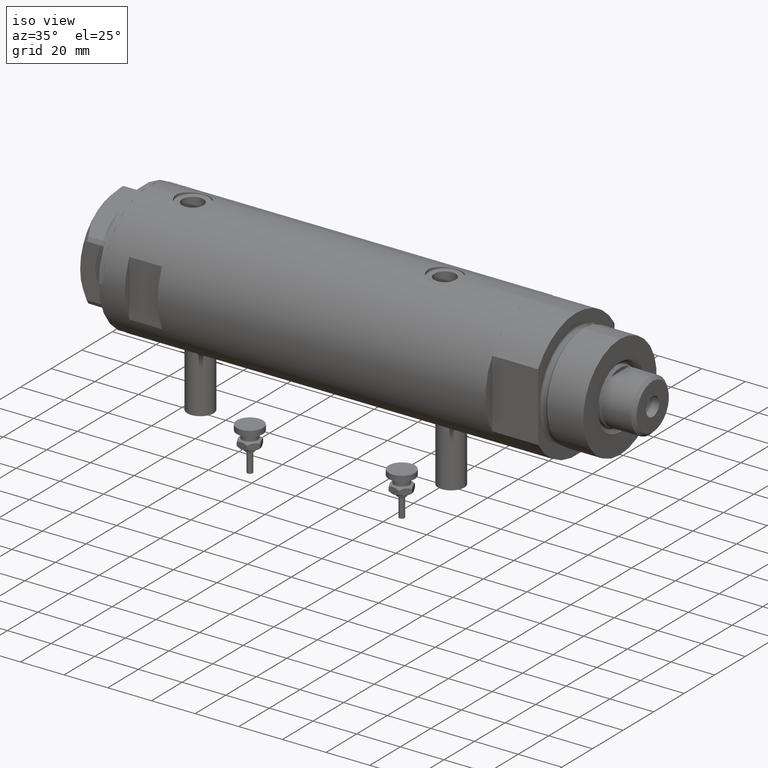
[diagram: clean part render]
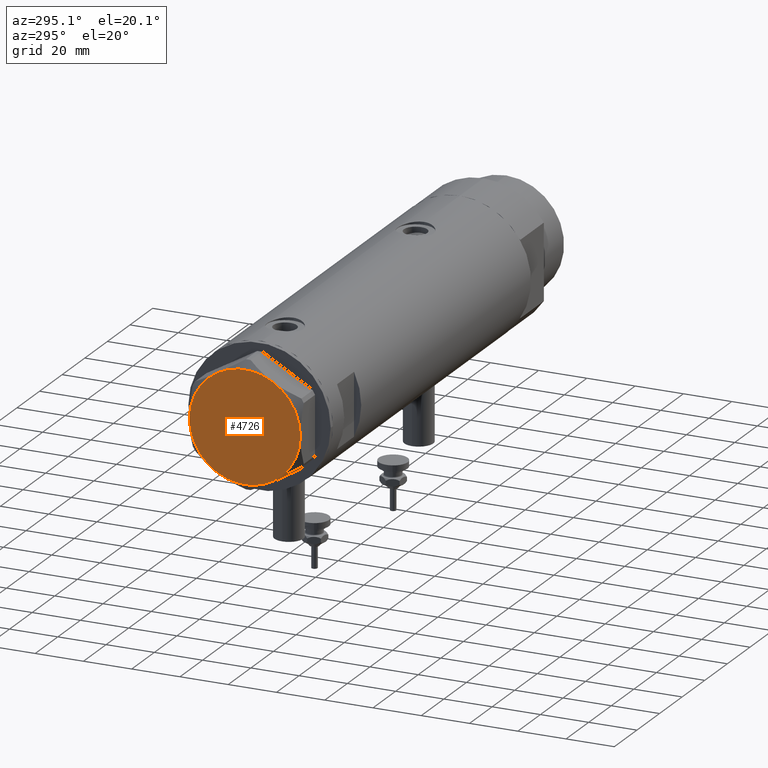
[diagram: tour spotlight — one face highlighted and labeled with its STEP entity id]
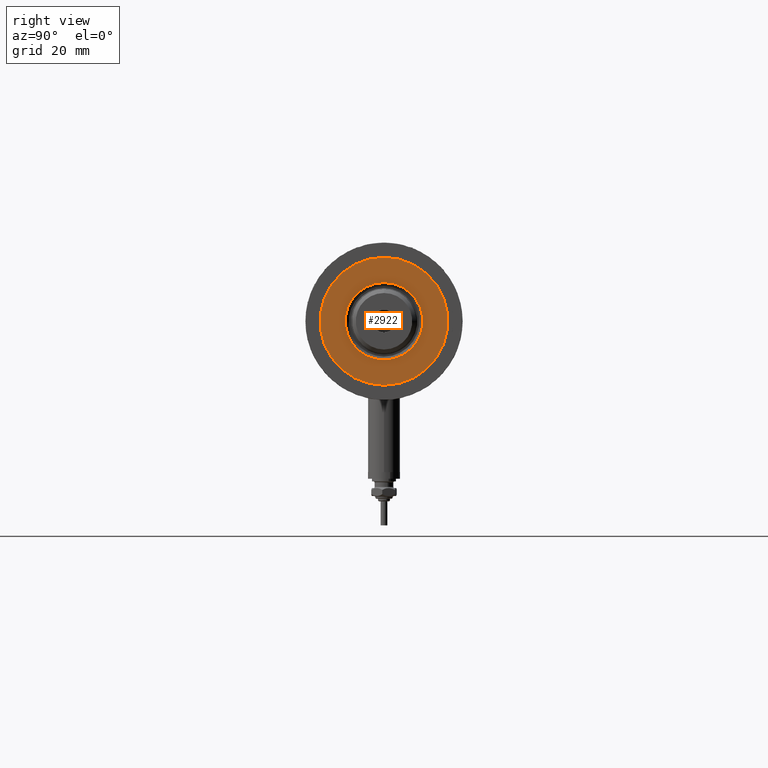
[diagram: tour spotlight — one face highlighted and labeled with its STEP entity id]
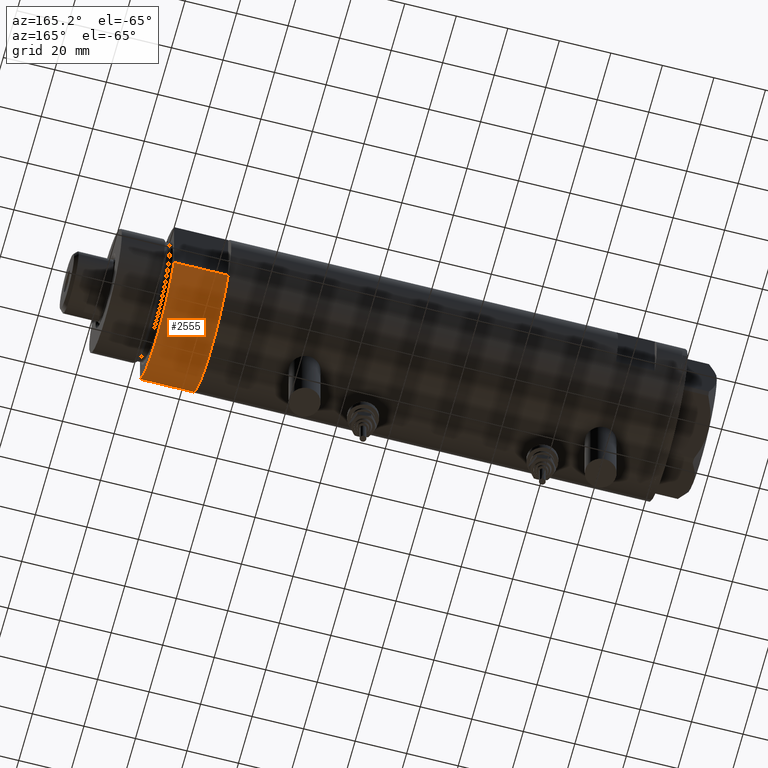
[diagram: tour spotlight — one face highlighted and labeled with its STEP entity id]
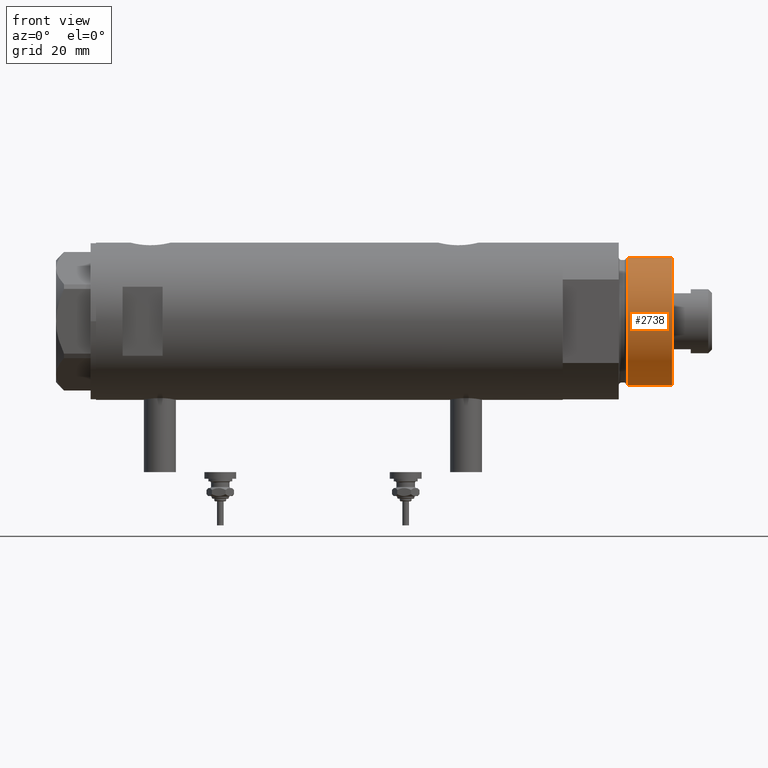
[diagram: tour spotlight — one face highlighted and labeled with its STEP entity id]
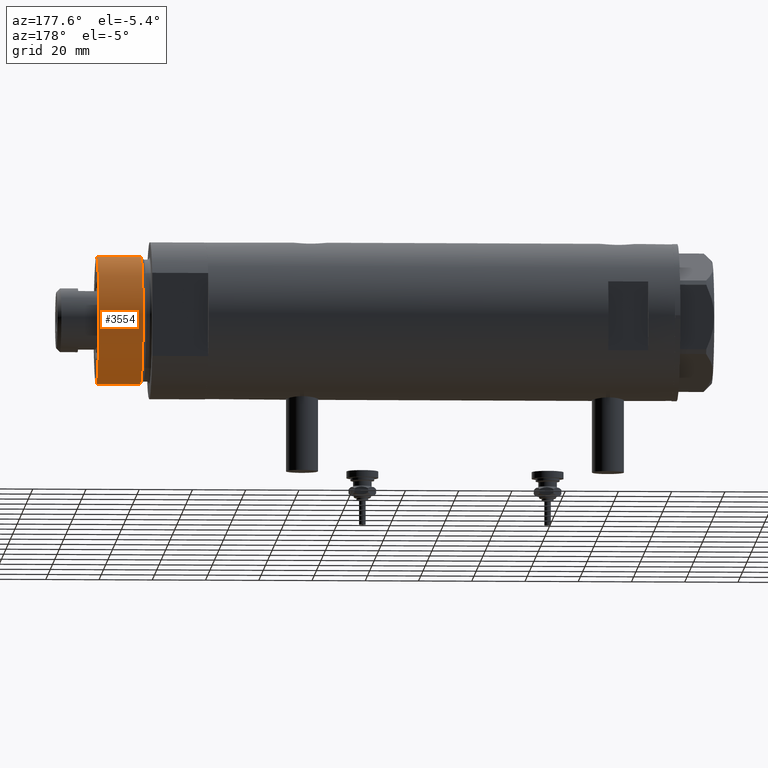
[diagram: tour spotlight — one face highlighted and labeled with its STEP entity id]
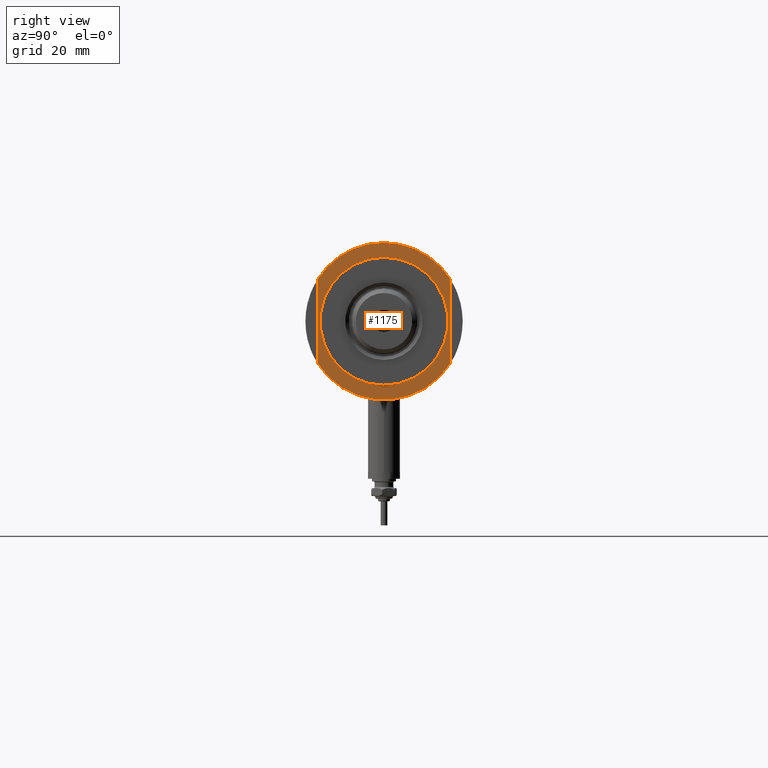
[diagram: tour spotlight — one face highlighted and labeled with its STEP entity id]
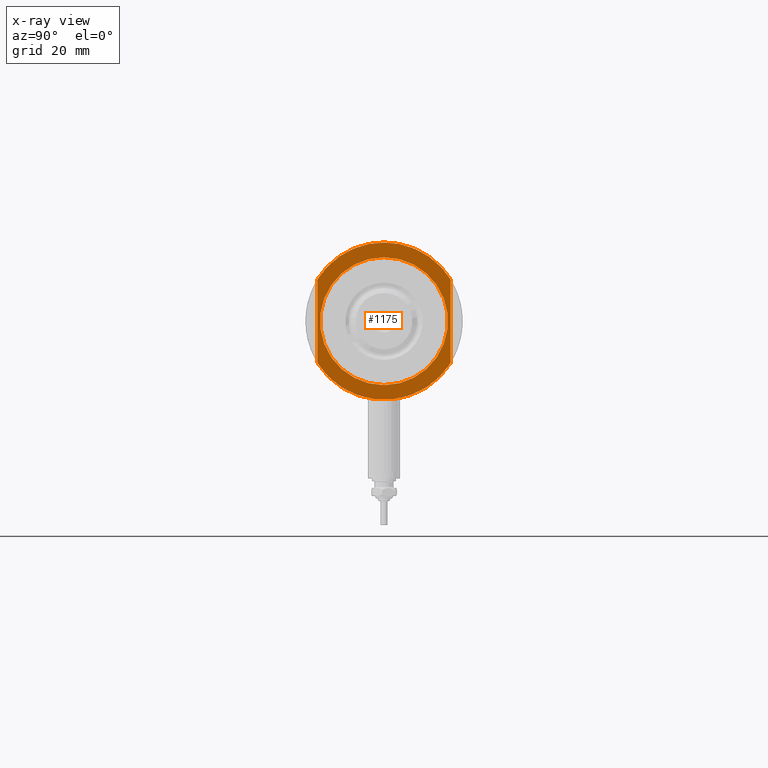
[diagram: x-ray of the same camera — body ghosted, this tour face saturated]
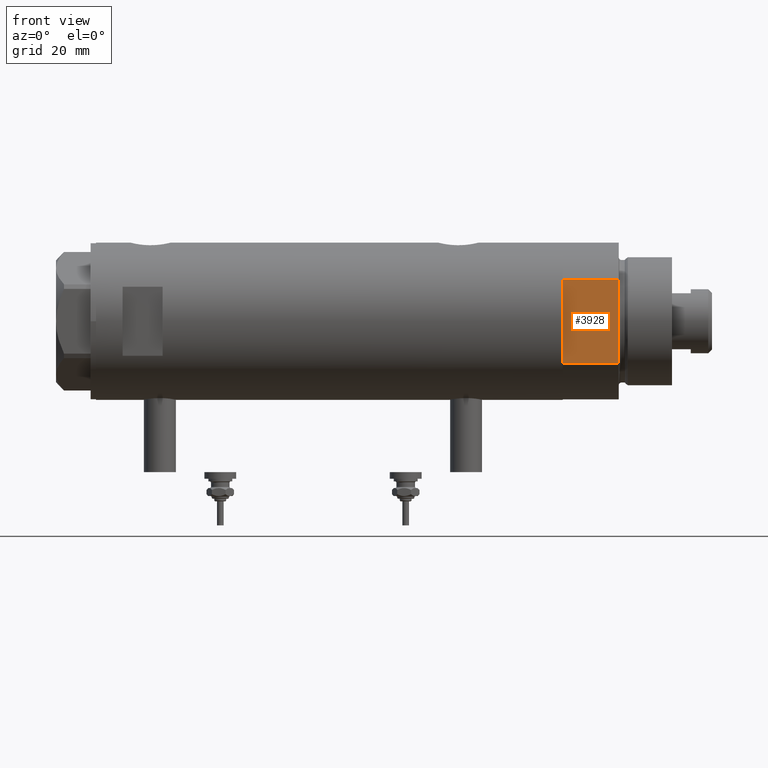
[diagram: tour spotlight — one face highlighted and labeled with its STEP entity id]
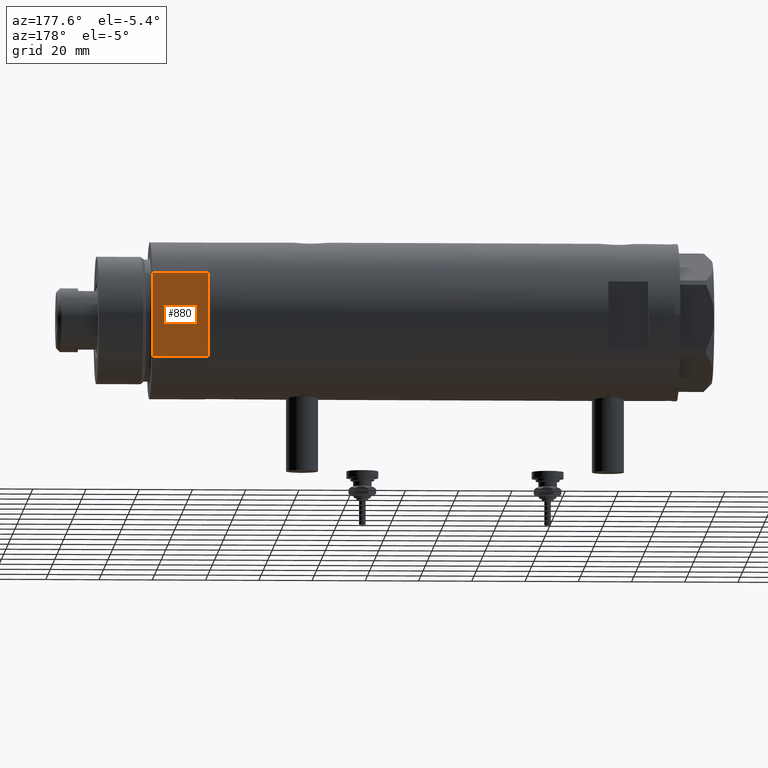
[diagram: tour spotlight — one face highlighted and labeled with its STEP entity id]
A machine part: a face-by-face anatomy tour. The part has 212 B-rep faces; the first image is the clean iso view, then the 8 largest visible faces are spotlighted one at a time (largest first), each with its STEP entity span.

Face 1 — auxiliary view, entity #4726. In plain terms, the highlighted planar face has unit normal (-1, -0, 0).
Definition (entity closure, byte-faithful):
#5 = VERTEX_POINT ( 'NONE', #5458 ) ;
#76 = CARTESIAN_POINT ( 'NONE',  ( 0.000000000000000000, 0.000000000000000000, 13.00000000000000000 ) ) ;
#137 = CARTESIAN_POINT ( 'NONE',  ( 0.000000000000000000, 0.000000000000000000, 13.00000000000000000 ) ) ;
#416 = EDGE_CURVE ( 'NONE', #603, #4367, #781, .T. ) ;
#467 = DIRECTION ( 'NONE',  ( 1.000000000000000000, 0.000000000000000000, 0.000000000000000000 ) ) ;
#497 = PLANE ( 'NONE',  #2364 ) ;
#603 = VERTEX_POINT ( 'NONE', #3994 ) ;
#773 = CARTESIAN_POINT ( 'NONE',  ( 0.000000000000000000, 0.000000000000000000, 13.00000000000000000 ) ) ;
#781 = CIRCLE ( 'NONE', #4120, 23.00000000000004619 ) ;
#957 = DIRECTION ( 'NONE',  ( 1.000000000000000000, 0.000000000000000000, -0.000000000000000000 ) ) ;
#966 = CARTESIAN_POINT ( 'NONE',  ( 0.000000000000000000, 0.000000000000000000, 13.00000000000000000 ) ) ;
#967 = EDGE_CURVE ( 'NONE', #4367, #2924, #1179, .T. ) ;
#980 = ORIENTED_EDGE ( 'NONE', *, *, #3523, .T. ) ;
#992 = VERTEX_POINT ( 'NONE', #3843 ) ;
#1016 = CIRCLE ( 'NONE', #1507, 23.00000000000004619 ) ;
#1033 = CIRCLE ( 'NONE', #4357, 23.00000000000004619 ) ;
#1052 = DIRECTION ( 'NONE',  ( 0.000000000000000000, 0.000000000000000000, 1.000000000000000000 ) ) ;
#1179 = CIRCLE ( 'NONE', #3260, 23.00000000000004619 ) ;
#1198 = ORIENTED_EDGE ( 'NONE', *, *, #967, .T. ) ;
#1426 = DIRECTION ( 'NONE',  ( 0.000000000000000000, 0.000000000000000000, 1.000000000000000000 ) ) ;
#1433 = CARTESIAN_POINT ( 'NONE',  ( 0.000000000000000000, 0.000000000000000000, 13.00000000000000000 ) ) ;
#1496 = DIRECTION ( 'NONE',  ( 0.000000000000000000, 0.000000000000000000, 1.000000000000000000 ) ) ;
#1507 = AXIS2_PLACEMENT_3D ( 'NONE', #76, #1052, #2860 ) ;
#1686 = ORIENTED_EDGE ( 'NONE', *, *, #5323, .T. ) ;
#1861 = FACE_OUTER_BOUND ( 'NONE', #1876, .T. ) ;
#1876 = EDGE_LOOP ( 'NONE', ( #4136, #1198, #5587, #980, #5157, #1686 ) ) ;
#2364 = AXIS2_PLACEMENT_3D ( 'NONE', #1433, #5050, #957 ) ;
#2614 = CIRCLE ( 'NONE', #3011, 23.00000000000004619 ) ;
#2679 = EDGE_CURVE ( 'NONE', #5, #992, #2614, .T. ) ;
#2722 = CARTESIAN_POINT ( 'NONE',  ( 0.000000000000000000, 0.000000000000000000, 13.00000000000000000 ) ) ;
#2755 = DIRECTION ( 'NONE',  ( 1.000000000000000000, 0.000000000000000000, 0.000000000000000000 ) ) ;
#2783 = DIRECTION ( 'NONE',  ( 0.000000000000000000, 0.000000000000000000, 1.000000000000000000 ) ) ;
#2860 = DIRECTION ( 'NONE',  ( 1.000000000000000000, 0.000000000000000000, 0.000000000000000000 ) ) ;
#2924 = VERTEX_POINT ( 'NONE', #3053 ) ;
#3011 = AXIS2_PLACEMENT_3D ( 'NONE', #773, #3553, #5427 ) ;
#3053 = CARTESIAN_POINT ( 'NONE',  ( 11.49999999999990408, 19.91858428704219364, 13.00000000000000000 ) ) ;
#3260 = AXIS2_PLACEMENT_3D ( 'NONE', #5515, #1426, #3707 ) ;
#3311 = DIRECTION ( 'NONE',  ( 1.000000000000000000, 0.000000000000000000, 0.000000000000000000 ) ) ;
#3391 = DIRECTION ( 'NONE',  ( 0.000000000000000000, 0.000000000000000000, 1.000000000000000000 ) ) ;
#3523 = EDGE_CURVE ( 'NONE', #4393, #5, #1016, .T. ) ;
#3553 = DIRECTION ( 'NONE',  ( 0.000000000000000000, 0.000000000000000000, 1.000000000000000000 ) ) ;
#3707 = DIRECTION ( 'NONE',  ( 1.000000000000000000, 0.000000000000000000, 0.000000000000000000 ) ) ;
#3843 = CARTESIAN_POINT ( 'NONE',  ( -11.49999999999990585, -19.91858428704219364, 13.00000000000000000 ) ) ;
#3994 = CARTESIAN_POINT ( 'NONE',  ( 11.50000000000018296, -19.91858428704203732, 13.00000000000000000 ) ) ;
#4120 = AXIS2_PLACEMENT_3D ( 'NONE', #2722, #2783, #2755 ) ;
#4136 = ORIENTED_EDGE ( 'NONE', *, *, #416, .T. ) ;
#4357 = AXIS2_PLACEMENT_3D ( 'NONE', #137, #3391, #3311 ) ;
#4367 = VERTEX_POINT ( 'NONE', #4550 ) ;
#4393 = VERTEX_POINT ( 'NONE', #4677 ) ;
#4416 = EDGE_CURVE ( 'NONE', #2924, #4393, #4924, .T. ) ;
#4550 = CARTESIAN_POINT ( 'NONE',  ( 22.99999999999995026, 2.373657066004705010E-13, 13.00000000000000000 ) ) ;
#4677 = CARTESIAN_POINT ( 'NONE',  ( -11.50000000000004441, 19.91858428704211548, 13.00000000000000000 ) ) ;
#4726 = ADVANCED_FACE ( 'NONE', ( #1861 ), #497, .T. ) ;
#4924 = CIRCLE ( 'NONE', #5691, 23.00000000000004619 ) ;
#5050 = DIRECTION ( 'NONE',  ( 0.000000000000000000, 0.000000000000000000, 1.000000000000000000 ) ) ;
#5157 = ORIENTED_EDGE ( 'NONE', *, *, #2679, .T. ) ;
#5323 = EDGE_CURVE ( 'NONE', #992, #603, #1033, .T. ) ;
#5427 = DIRECTION ( 'NONE',  ( 1.000000000000000000, 0.000000000000000000, 0.000000000000000000 ) ) ;
#5458 = CARTESIAN_POINT ( 'NONE',  ( -23.00000000000004619, -8.112498833180673323E-14, 13.00000000000000000 ) ) ;
#5515 = CARTESIAN_POINT ( 'NONE',  ( 0.000000000000000000, 0.000000000000000000, 13.00000000000000000 ) ) ;
#5587 = ORIENTED_EDGE ( 'NONE', *, *, #4416, .T. ) ;
#5691 = AXIS2_PLACEMENT_3D ( 'NONE', #966, #1496, #467 ) ;

Face 2 — right view, entity #2922. In plain terms, the highlighted planar face has unit normal (1, 0, -0).
Definition (entity closure, byte-faithful):
#56 = CARTESIAN_POINT ( 'NONE',  ( 14.54999999999997939, 0.000000000000000000, 41.00000000000000000 ) ) ;
#630 = CIRCLE ( 'NONE', #3970, 24.00000000000000355 ) ;
#1017 = CARTESIAN_POINT ( 'NONE',  ( 0.000000000000000000, 0.000000000000000000, 41.00000000000000000 ) ) ;
#1201 = AXIS2_PLACEMENT_3D ( 'NONE', #5750, #1665, #5302 ) ;
#1274 = ORIENTED_EDGE ( 'NONE', *, *, #3200, .T. ) ;
#1401 = CIRCLE ( 'NONE', #1201, 24.00000000000000355 ) ;
#1450 = EDGE_CURVE ( 'NONE', #4061, #4706, #2897, .T. ) ;
#1613 = CARTESIAN_POINT ( 'NONE',  ( -14.54999999999997939, 1.781861092759396721E-15, 41.00000000000000000 ) ) ;
#1665 = DIRECTION ( 'NONE',  ( 0.000000000000000000, 0.000000000000000000, 1.000000000000000000 ) ) ;
#1689 = DIRECTION ( 'NONE',  ( 0.000000000000000000, 0.000000000000000000, 1.000000000000000000 ) ) ;
#1707 = EDGE_LOOP ( 'NONE', ( #5253, #2187 ) ) ;
#1736 = PLANE ( 'NONE',  #1965 ) ;
#1965 = AXIS2_PLACEMENT_3D ( 'NONE', #3932, #1689, #3546 ) ;
#2187 = ORIENTED_EDGE ( 'NONE', *, *, #1450, .T. ) ;
#2287 = DIRECTION ( 'NONE',  ( 0.000000000000000000, 0.000000000000000000, 1.000000000000000000 ) ) ;
#2369 = ORIENTED_EDGE ( 'NONE', *, *, #5377, .T. ) ;
#2453 = AXIS2_PLACEMENT_3D ( 'NONE', #1017, #2770, #4111 ) ;
#2731 = CIRCLE ( 'NONE', #2453, 14.54999999999997939 ) ;
#2737 = VERTEX_POINT ( 'NONE', #2779 ) ;
#2770 = DIRECTION ( 'NONE',  ( -0.000000000000000000, -0.000000000000000000, -1.000000000000000000 ) ) ;
#2779 = CARTESIAN_POINT ( 'NONE',  ( -24.00000000000000355, 0.000000000000000000, 41.00000000000000000 ) ) ;
#2780 = EDGE_LOOP ( 'NONE', ( #2369, #1274 ) ) ;
#2897 = CIRCLE ( 'NONE', #4893, 14.54999999999997939 ) ;
#2922 = ADVANCED_FACE ( 'NONE', ( #5829, #5771 ), #1736, .T. ) ;
#3200 = EDGE_CURVE ( 'NONE', #5695, #2737, #1401, .T. ) ;
#3546 = DIRECTION ( 'NONE',  ( 1.000000000000000000, 0.000000000000000000, -0.000000000000000000 ) ) ;
#3549 = CARTESIAN_POINT ( 'NONE',  ( 0.000000000000000000, 0.000000000000000000, 41.00000000000000000 ) ) ;
#3932 = CARTESIAN_POINT ( 'NONE',  ( 0.000000000000000000, 0.000000000000000000, 41.00000000000000000 ) ) ;
#3970 = AXIS2_PLACEMENT_3D ( 'NONE', #4043, #2287, #5007 ) ;
#4043 = CARTESIAN_POINT ( 'NONE',  ( 0.000000000000000000, 0.000000000000000000, 41.00000000000000000 ) ) ;
#4061 = VERTEX_POINT ( 'NONE', #1613 ) ;
#4111 = DIRECTION ( 'NONE',  ( 1.000000000000000000, 0.000000000000000000, 0.000000000000000000 ) ) ;
#4229 = CARTESIAN_POINT ( 'NONE',  ( 24.00000000000000355, 2.939152317953648289E-15, 41.00000000000000000 ) ) ;
#4706 = VERTEX_POINT ( 'NONE', #56 ) ;
#4893 = AXIS2_PLACEMENT_3D ( 'NONE', #3549, #5386, #5477 ) ;
#5007 = DIRECTION ( 'NONE',  ( 1.000000000000000000, 0.000000000000000000, 0.000000000000000000 ) ) ;
#5241 = EDGE_CURVE ( 'NONE', #4706, #4061, #2731, .T. ) ;
#5253 = ORIENTED_EDGE ( 'NONE', *, *, #5241, .T. ) ;
#5302 = DIRECTION ( 'NONE',  ( 1.000000000000000000, 0.000000000000000000, 0.000000000000000000 ) ) ;
#5377 = EDGE_CURVE ( 'NONE', #2737, #5695, #630, .T. ) ;
#5386 = DIRECTION ( 'NONE',  ( -0.000000000000000000, -0.000000000000000000, -1.000000000000000000 ) ) ;
#5477 = DIRECTION ( 'NONE',  ( 1.000000000000000000, 0.000000000000000000, 0.000000000000000000 ) ) ;
#5695 = VERTEX_POINT ( 'NONE', #4229 ) ;
#5750 = CARTESIAN_POINT ( 'NONE',  ( 0.000000000000000000, 0.000000000000000000, 41.00000000000000000 ) ) ;
#5771 = FACE_OUTER_BOUND ( 'NONE', #2780, .T. ) ;
#5829 = FACE_BOUND ( 'NONE', #1707, .T. ) ;

Face 3 — auxiliary view, entity #2555. In plain terms, the highlighted cylindrical surface (partial cylindrical patch) has radius 29.5 mm, axis along (-1, -0, 0).
Definition (entity closure, byte-faithful):
#128 = CYLINDRICAL_SURFACE ( 'NONE', #1859, 29.50000000000000355 ) ;
#216 = CARTESIAN_POINT ( 'NONE',  ( 15.66045976336583401, -25.00000000000000000, 0.000000000000000000 ) ) ;
#233 = CIRCLE ( 'NONE', #3496, 29.50000000000000355 ) ;
#475 = LINE ( 'NONE', #5465, #1424 ) ;
#568 = DIRECTION ( 'NONE',  ( 0.000000000000000000, 0.000000000000000000, 1.000000000000000000 ) ) ;
#1046 = FACE_OUTER_BOUND ( 'NONE', #1556, .T. ) ;
#1394 = AXIS2_PLACEMENT_3D ( 'NONE', #2243, #568, #3205 ) ;
#1415 = CARTESIAN_POINT ( 'NONE',  ( 0.000000000000000000, 0.000000000000000000, 21.00000000000000000 ) ) ;
#1424 = VECTOR ( 'NONE', #3609, 1000.000000000000000 ) ;
#1556 = EDGE_LOOP ( 'NONE', ( #1632, #5480, #4825, #3570 ) ) ;
#1632 = ORIENTED_EDGE ( 'NONE', *, *, #5059, .F. ) ;
#1859 = AXIS2_PLACEMENT_3D ( 'NONE', #2393, #3269, #4197 ) ;
#1896 = CARTESIAN_POINT ( 'NONE',  ( 15.66045976336583045, 24.99999999999999645, 20.99999999999999645 ) ) ;
#1920 = LINE ( 'NONE', #3735, #2266 ) ;
#2243 = CARTESIAN_POINT ( 'NONE',  ( 0.000000000000000000, 0.000000000000000000, 0.000000000000000000 ) ) ;
#2266 = VECTOR ( 'NONE', #2268, 1000.000000000000000 ) ;
#2268 = DIRECTION ( 'NONE',  ( -0.000000000000000000, -0.000000000000000000, 1.000000000000000000 ) ) ;
#2393 = CARTESIAN_POINT ( 'NONE',  ( 0.000000000000000000, 0.000000000000000000, 21.00000000000000000 ) ) ;
#2555 = ADVANCED_FACE ( 'NONE', ( #1046 ), #128, .T. ) ;
#2569 = CARTESIAN_POINT ( 'NONE',  ( 15.66045976336583045, -25.00000000000000000, 21.00000000000000355 ) ) ;
#2728 = EDGE_CURVE ( 'NONE', #4480, #3626, #3949, .T. ) ;
#3205 = DIRECTION ( 'NONE',  ( 1.000000000000000000, 0.000000000000000000, 0.000000000000000000 ) ) ;
#3269 = DIRECTION ( 'NONE',  ( -0.000000000000000000, -0.000000000000000000, -1.000000000000000000 ) ) ;
#3325 = VERTEX_POINT ( 'NONE', #2569 ) ;
#3410 = VERTEX_POINT ( 'NONE', #1896 ) ;
#3496 = AXIS2_PLACEMENT_3D ( 'NONE', #1415, #5504, #5308 ) ;
#3570 = ORIENTED_EDGE ( 'NONE', *, *, #5645, .T. ) ;
#3609 = DIRECTION ( 'NONE',  ( -0.000000000000000000, -0.000000000000000000, 1.000000000000000000 ) ) ;
#3626 = VERTEX_POINT ( 'NONE', #5304 ) ;
#3735 = CARTESIAN_POINT ( 'NONE',  ( 15.66045976336583401, 25.00000000000000000, 0.000000000000000000 ) ) ;
#3949 = CIRCLE ( 'NONE', #1394, 29.50000000000000355 ) ;
#4197 = DIRECTION ( 'NONE',  ( -1.000000000000000000, 0.000000000000000000, 0.000000000000000000 ) ) ;
#4480 = VERTEX_POINT ( 'NONE', #216 ) ;
#4825 = ORIENTED_EDGE ( 'NONE', *, *, #2728, .T. ) ;
#5059 = EDGE_CURVE ( 'NONE', #3325, #3410, #233, .T. ) ;
#5304 = CARTESIAN_POINT ( 'NONE',  ( 15.66045976336582690, 25.00000000000000000, 0.000000000000000000 ) ) ;
#5308 = DIRECTION ( 'NONE',  ( 1.000000000000000000, 0.000000000000000000, 0.000000000000000000 ) ) ;
#5404 = EDGE_CURVE ( 'NONE', #4480, #3325, #475, .T. ) ;
#5465 = CARTESIAN_POINT ( 'NONE',  ( 15.66045976336583401, -25.00000000000000000, 0.000000000000000000 ) ) ;
#5480 = ORIENTED_EDGE ( 'NONE', *, *, #5404, .F. ) ;
#5504 = DIRECTION ( 'NONE',  ( 0.000000000000000000, 0.000000000000000000, 1.000000000000000000 ) ) ;
#5645 = EDGE_CURVE ( 'NONE', #3626, #3410, #1920, .T. ) ;

Face 4 — front view, entity #2738. In plain terms, the highlighted cylindrical surface (partial cylindrical patch) has radius 24 mm, axis along (-1, -0, 0).
Definition (entity closure, byte-faithful):
#23 = DIRECTION ( 'NONE',  ( -0.000000000000000000, -0.000000000000000000, -1.000000000000000000 ) ) ;
#37 = VECTOR ( 'NONE', #5076, 1000.000000000000000 ) ;
#57 = VERTEX_POINT ( 'NONE', #3079 ) ;
#86 = CARTESIAN_POINT ( 'NONE',  ( 0.000000000000000000, 0.000000000000000000, 41.00000000000000000 ) ) ;
#91 = DIRECTION ( 'NONE',  ( 1.000000000000000000, 0.000000000000000000, 0.000000000000000000 ) ) ;
#611 = ORIENTED_EDGE ( 'NONE', *, *, #5377, .F. ) ;
#630 = CIRCLE ( 'NONE', #3970, 24.00000000000000355 ) ;
#1387 = CARTESIAN_POINT ( 'NONE',  ( 24.00000000000000355, 2.939152317953648289E-15, 41.00000000000000000 ) ) ;
#1495 = VECTOR ( 'NONE', #23, 1000.000000000000000 ) ;
#1515 = ORIENTED_EDGE ( 'NONE', *, *, #2990, .F. ) ;
#1830 = CYLINDRICAL_SURFACE ( 'NONE', #5396, 24.00000000000000355 ) ;
#1919 = LINE ( 'NONE', #2800, #1495 ) ;
#2072 = ORIENTED_EDGE ( 'NONE', *, *, #3016, .T. ) ;
#2157 = AXIS2_PLACEMENT_3D ( 'NONE', #3209, #3744, #91 ) ;
#2287 = DIRECTION ( 'NONE',  ( 0.000000000000000000, 0.000000000000000000, 1.000000000000000000 ) ) ;
#2737 = VERTEX_POINT ( 'NONE', #2779 ) ;
#2738 = ADVANCED_FACE ( 'NONE', ( #4834 ), #1830, .T. ) ;
#2771 = LINE ( 'NONE', #1387, #37 ) ;
#2779 = CARTESIAN_POINT ( 'NONE',  ( -24.00000000000000355, 0.000000000000000000, 41.00000000000000000 ) ) ;
#2800 = CARTESIAN_POINT ( 'NONE',  ( -24.00000000000000355, 0.000000000000000000, 41.00000000000000000 ) ) ;
#2990 = EDGE_CURVE ( 'NONE', #5695, #3781, #2771, .T. ) ;
#3016 = EDGE_CURVE ( 'NONE', #2737, #57, #1919, .T. ) ;
#3079 = CARTESIAN_POINT ( 'NONE',  ( -24.00000000000000355, 0.000000000000000000, 24.37384048104054557 ) ) ;
#3209 = CARTESIAN_POINT ( 'NONE',  ( 0.000000000000000000, 0.000000000000000000, 24.37384048104054557 ) ) ;
#3728 = EDGE_LOOP ( 'NONE', ( #1515, #611, #2072, #5615 ) ) ;
#3744 = DIRECTION ( 'NONE',  ( -0.000000000000000000, -0.000000000000000000, 1.000000000000000000 ) ) ;
#3781 = VERTEX_POINT ( 'NONE', #5455 ) ;
#3970 = AXIS2_PLACEMENT_3D ( 'NONE', #4043, #2287, #5007 ) ;
#4043 = CARTESIAN_POINT ( 'NONE',  ( 0.000000000000000000, 0.000000000000000000, 41.00000000000000000 ) ) ;
#4124 = DIRECTION ( 'NONE',  ( -1.000000000000000000, 0.000000000000000000, 0.000000000000000000 ) ) ;
#4229 = CARTESIAN_POINT ( 'NONE',  ( 24.00000000000000355, 2.939152317953648289E-15, 41.00000000000000000 ) ) ;
#4372 = EDGE_CURVE ( 'NONE', #57, #3781, #4727, .T. ) ;
#4575 = DIRECTION ( 'NONE',  ( -0.000000000000000000, -0.000000000000000000, -1.000000000000000000 ) ) ;
#4727 = CIRCLE ( 'NONE', #2157, 24.00000000000000355 ) ;
#4834 = FACE_OUTER_BOUND ( 'NONE', #3728, .T. ) ;
#5007 = DIRECTION ( 'NONE',  ( 1.000000000000000000, 0.000000000000000000, 0.000000000000000000 ) ) ;
#5076 = DIRECTION ( 'NONE',  ( -0.000000000000000000, -0.000000000000000000, -1.000000000000000000 ) ) ;
#5377 = EDGE_CURVE ( 'NONE', #2737, #5695, #630, .T. ) ;
#5396 = AXIS2_PLACEMENT_3D ( 'NONE', #86, #4575, #4124 ) ;
#5455 = CARTESIAN_POINT ( 'NONE',  ( 24.00000000000000355, 2.939152317953648289E-15, 24.37384048104054557 ) ) ;
#5615 = ORIENTED_EDGE ( 'NONE', *, *, #4372, .T. ) ;
#5695 = VERTEX_POINT ( 'NONE', #4229 ) ;

Face 5 — auxiliary view, entity #3554. In plain terms, the highlighted cylindrical surface (partial cylindrical patch) has radius 24 mm, axis along (-1, -0, 0).
Definition (entity closure, byte-faithful):
#23 = DIRECTION ( 'NONE',  ( -0.000000000000000000, -0.000000000000000000, -1.000000000000000000 ) ) ;
#37 = VECTOR ( 'NONE', #5076, 1000.000000000000000 ) ;
#57 = VERTEX_POINT ( 'NONE', #3079 ) ;
#904 = CARTESIAN_POINT ( 'NONE',  ( 0.000000000000000000, 0.000000000000000000, 41.00000000000000000 ) ) ;
#1036 = EDGE_LOOP ( 'NONE', ( #4791, #5662, #2868, #5112 ) ) ;
#1189 = DIRECTION ( 'NONE',  ( -1.000000000000000000, 0.000000000000000000, 0.000000000000000000 ) ) ;
#1201 = AXIS2_PLACEMENT_3D ( 'NONE', #5750, #1665, #5302 ) ;
#1387 = CARTESIAN_POINT ( 'NONE',  ( 24.00000000000000355, 2.939152317953648289E-15, 41.00000000000000000 ) ) ;
#1401 = CIRCLE ( 'NONE', #1201, 24.00000000000000355 ) ;
#1495 = VECTOR ( 'NONE', #23, 1000.000000000000000 ) ;
#1665 = DIRECTION ( 'NONE',  ( 0.000000000000000000, 0.000000000000000000, 1.000000000000000000 ) ) ;
#1768 = AXIS2_PLACEMENT_3D ( 'NONE', #904, #4554, #1189 ) ;
#1919 = LINE ( 'NONE', #2800, #1495 ) ;
#2620 = EDGE_CURVE ( 'NONE', #3781, #57, #4144, .T. ) ;
#2737 = VERTEX_POINT ( 'NONE', #2779 ) ;
#2771 = LINE ( 'NONE', #1387, #37 ) ;
#2779 = CARTESIAN_POINT ( 'NONE',  ( -24.00000000000000355, 0.000000000000000000, 41.00000000000000000 ) ) ;
#2800 = CARTESIAN_POINT ( 'NONE',  ( -24.00000000000000355, 0.000000000000000000, 41.00000000000000000 ) ) ;
#2868 = ORIENTED_EDGE ( 'NONE', *, *, #2620, .T. ) ;
#2990 = EDGE_CURVE ( 'NONE', #5695, #3781, #2771, .T. ) ;
#3016 = EDGE_CURVE ( 'NONE', #2737, #57, #1919, .T. ) ;
#3079 = CARTESIAN_POINT ( 'NONE',  ( -24.00000000000000355, 0.000000000000000000, 24.37384048104054557 ) ) ;
#3185 = FACE_OUTER_BOUND ( 'NONE', #1036, .T. ) ;
#3200 = EDGE_CURVE ( 'NONE', #5695, #2737, #1401, .T. ) ;
#3554 = ADVANCED_FACE ( 'NONE', ( #3185 ), #5002, .T. ) ;
#3781 = VERTEX_POINT ( 'NONE', #5455 ) ;
#4144 = CIRCLE ( 'NONE', #4321, 24.00000000000000355 ) ;
#4168 = DIRECTION ( 'NONE',  ( -0.000000000000000000, -0.000000000000000000, 1.000000000000000000 ) ) ;
#4229 = CARTESIAN_POINT ( 'NONE',  ( 24.00000000000000355, 2.939152317953648289E-15, 41.00000000000000000 ) ) ;
#4321 = AXIS2_PLACEMENT_3D ( 'NONE', #4329, #4168, #5556 ) ;
#4329 = CARTESIAN_POINT ( 'NONE',  ( 0.000000000000000000, 0.000000000000000000, 24.37384048104054557 ) ) ;
#4554 = DIRECTION ( 'NONE',  ( -0.000000000000000000, -0.000000000000000000, -1.000000000000000000 ) ) ;
#4791 = ORIENTED_EDGE ( 'NONE', *, *, #3200, .F. ) ;
#5002 = CYLINDRICAL_SURFACE ( 'NONE', #1768, 24.00000000000000355 ) ;
#5076 = DIRECTION ( 'NONE',  ( -0.000000000000000000, -0.000000000000000000, -1.000000000000000000 ) ) ;
#5112 = ORIENTED_EDGE ( 'NONE', *, *, #3016, .F. ) ;
#5302 = DIRECTION ( 'NONE',  ( 1.000000000000000000, 0.000000000000000000, 0.000000000000000000 ) ) ;
#5455 = CARTESIAN_POINT ( 'NONE',  ( 24.00000000000000355, 2.939152317953648289E-15, 24.37384048104054557 ) ) ;
#5556 = DIRECTION ( 'NONE',  ( 1.000000000000000000, 0.000000000000000000, 0.000000000000000000 ) ) ;
#5662 = ORIENTED_EDGE ( 'NONE', *, *, #2990, .T. ) ;
#5695 = VERTEX_POINT ( 'NONE', #4229 ) ;
#5750 = CARTESIAN_POINT ( 'NONE',  ( 0.000000000000000000, 0.000000000000000000, 41.00000000000000000 ) ) ;

Face 6 — right view, entity #1175. An x-ray twin of the same camera follows (body ghosted, this face saturated) — the face is partly hidden behind the body. In plain terms, the highlighted planar face has unit normal (1, 0, -0).
Definition (entity closure, byte-faithful):
#173 = EDGE_CURVE ( 'NONE', #4218, #3410, #5082, .T. ) ;
#233 = CIRCLE ( 'NONE', #3496, 29.50000000000000355 ) ;
#325 = EDGE_CURVE ( 'NONE', #4880, #4438, #1943, .T. ) ;
#438 = CARTESIAN_POINT ( 'NONE',  ( -15.66045976336583045, 24.99999999999999645, 21.00000000000000355 ) ) ;
#484 = AXIS2_PLACEMENT_3D ( 'NONE', #4013, #5346, #4890 ) ;
#573 = VERTEX_POINT ( 'NONE', #3435 ) ;
#749 = DIRECTION ( 'NONE',  ( 0.000000000000000000, 0.000000000000000000, 1.000000000000000000 ) ) ;
#951 = DIRECTION ( 'NONE',  ( 0.000000000000000000, 0.000000000000000000, 1.000000000000000000 ) ) ;
#978 = DIRECTION ( 'NONE',  ( 1.000000000000000000, 0.000000000000000000, 0.000000000000000000 ) ) ;
#988 = DIRECTION ( 'NONE',  ( 1.000000000000000000, 0.000000000000000000, 0.000000000000000000 ) ) ;
#1175 = ADVANCED_FACE ( 'NONE', ( #5796, #2199 ), #5853, .T. ) ;
#1222 = CARTESIAN_POINT ( 'NONE',  ( 0.000000000000000000, 0.000000000000000000, 21.00000000000000000 ) ) ;
#1353 = CARTESIAN_POINT ( 'NONE',  ( 0.000000000000000000, 0.000000000000000000, 21.00000000000000000 ) ) ;
#1415 = CARTESIAN_POINT ( 'NONE',  ( 0.000000000000000000, 0.000000000000000000, 21.00000000000000000 ) ) ;
#1455 = DIRECTION ( 'NONE',  ( 1.000000000000000000, 0.000000000000000000, 0.000000000000000000 ) ) ;
#1519 = CARTESIAN_POINT ( 'NONE',  ( -15.66045976336583401, 25.00000000000000000, 21.00000000000000000 ) ) ;
#1734 = DIRECTION ( 'NONE',  ( 1.000000000000000000, 0.000000000000000000, -0.000000000000000000 ) ) ;
#1844 = ORIENTED_EDGE ( 'NONE', *, *, #2246, .T. ) ;
#1845 = ORIENTED_EDGE ( 'NONE', *, *, #325, .T. ) ;
#1896 = CARTESIAN_POINT ( 'NONE',  ( 15.66045976336583045, 24.99999999999999645, 20.99999999999999645 ) ) ;
#1943 = CIRCLE ( 'NONE', #484, 24.00000000000000000 ) ;
#2199 = FACE_OUTER_BOUND ( 'NONE', #4645, .T. ) ;
#2246 = EDGE_CURVE ( 'NONE', #4438, #4880, #5581, .T. ) ;
#2301 = CARTESIAN_POINT ( 'NONE',  ( 0.000000000000000000, 0.000000000000000000, 21.00000000000000000 ) ) ;
#2330 = CARTESIAN_POINT ( 'NONE',  ( -15.66045976336583401, -25.00000000000000000, 21.00000000000000000 ) ) ;
#2569 = CARTESIAN_POINT ( 'NONE',  ( 15.66045976336583045, -25.00000000000000000, 21.00000000000000355 ) ) ;
#3198 = CIRCLE ( 'NONE', #3675, 29.50000000000000355 ) ;
#3207 = EDGE_CURVE ( 'NONE', #573, #5275, #3198, .T. ) ;
#3213 = VECTOR ( 'NONE', #3277, 1000.000000000000000 ) ;
#3277 = DIRECTION ( 'NONE',  ( -1.000000000000000000, -0.000000000000000000, -0.000000000000000000 ) ) ;
#3325 = VERTEX_POINT ( 'NONE', #2569 ) ;
#3410 = VERTEX_POINT ( 'NONE', #1896 ) ;
#3435 = CARTESIAN_POINT ( 'NONE',  ( -29.50000000000000355, 0.000000000000000000, 21.00000000000000000 ) ) ;
#3496 = AXIS2_PLACEMENT_3D ( 'NONE', #1415, #5504, #5308 ) ;
#3511 = EDGE_CURVE ( 'NONE', #4218, #573, #5777, .T. ) ;
#3610 = EDGE_LOOP ( 'NONE', ( #1845, #1844 ) ) ;
#3675 = AXIS2_PLACEMENT_3D ( 'NONE', #1222, #749, #1455 ) ;
#3961 = DIRECTION ( 'NONE',  ( 0.000000000000000000, 0.000000000000000000, 1.000000000000000000 ) ) ;
#3992 = DIRECTION ( 'NONE',  ( 1.000000000000000000, 0.000000000000000000, 0.000000000000000000 ) ) ;
#4013 = CARTESIAN_POINT ( 'NONE',  ( 0.000000000000000000, 0.000000000000000000, 21.00000000000000000 ) ) ;
#4050 = AXIS2_PLACEMENT_3D ( 'NONE', #5917, #951, #978 ) ;
#4127 = CARTESIAN_POINT ( 'NONE',  ( -24.00000000000000000, 2.939152317953647894E-15, 21.00000000000000000 ) ) ;
#4218 = VERTEX_POINT ( 'NONE', #438 ) ;
#4417 = AXIS2_PLACEMENT_3D ( 'NONE', #1353, #3961, #1734 ) ;
#4433 = ORIENTED_EDGE ( 'NONE', *, *, #3207, .T. ) ;
#4438 = VERTEX_POINT ( 'NONE', #4127 ) ;
#4569 = DIRECTION ( 'NONE',  ( -0.000000000000000000, -0.000000000000000000, -1.000000000000000000 ) ) ;
#4613 = ORIENTED_EDGE ( 'NONE', *, *, #5059, .T. ) ;
#4645 = EDGE_LOOP ( 'NONE', ( #5582, #4613, #5634, #4883, #4433 ) ) ;
#4663 = CARTESIAN_POINT ( 'NONE',  ( -15.66045976336583045, -24.99999999999999645, 20.99999999999999645 ) ) ;
#4880 = VERTEX_POINT ( 'NONE', #4977 ) ;
#4883 = ORIENTED_EDGE ( 'NONE', *, *, #3511, .T. ) ;
#4890 = DIRECTION ( 'NONE',  ( 1.000000000000000000, 0.000000000000000000, 0.000000000000000000 ) ) ;
#4977 = CARTESIAN_POINT ( 'NONE',  ( 24.00000000000000000, 0.000000000000000000, 21.00000000000000000 ) ) ;
#5059 = EDGE_CURVE ( 'NONE', #3325, #3410, #233, .T. ) ;
#5082 = LINE ( 'NONE', #1519, #5466 ) ;
#5275 = VERTEX_POINT ( 'NONE', #4663 ) ;
#5277 = EDGE_CURVE ( 'NONE', #3325, #5275, #5918, .T. ) ;
#5308 = DIRECTION ( 'NONE',  ( 1.000000000000000000, 0.000000000000000000, 0.000000000000000000 ) ) ;
#5346 = DIRECTION ( 'NONE',  ( -0.000000000000000000, -0.000000000000000000, -1.000000000000000000 ) ) ;
#5466 = VECTOR ( 'NONE', #988, 1000.000000000000000 ) ;
#5492 = AXIS2_PLACEMENT_3D ( 'NONE', #2301, #4569, #3992 ) ;
#5504 = DIRECTION ( 'NONE',  ( 0.000000000000000000, 0.000000000000000000, 1.000000000000000000 ) ) ;
#5581 = CIRCLE ( 'NONE', #5492, 24.00000000000000000 ) ;
#5582 = ORIENTED_EDGE ( 'NONE', *, *, #5277, .F. ) ;
#5634 = ORIENTED_EDGE ( 'NONE', *, *, #173, .F. ) ;
#5777 = CIRCLE ( 'NONE', #4050, 29.50000000000000355 ) ;
#5796 = FACE_BOUND ( 'NONE', #3610, .T. ) ;
#5853 = PLANE ( 'NONE',  #4417 ) ;
#5917 = CARTESIAN_POINT ( 'NONE',  ( 0.000000000000000000, 0.000000000000000000, 21.00000000000000000 ) ) ;
#5918 = LINE ( 'NONE', #2330, #3213 ) ;

Face 7 — front view, entity #3928. In plain terms, the highlighted planar face has unit normal (-0, 1, 0).
Definition (entity closure, byte-faithful):
#180 = DIRECTION ( 'NONE',  ( -1.000000000000000000, -0.000000000000000000, -0.000000000000000000 ) ) ;
#216 = CARTESIAN_POINT ( 'NONE',  ( 15.66045976336583401, -25.00000000000000000, 0.000000000000000000 ) ) ;
#218 = CARTESIAN_POINT ( 'NONE',  ( -15.66045976336583401, -25.00000000000000000, 0.000000000000000000 ) ) ;
#234 = PLANE ( 'NONE',  #810 ) ;
#417 = VECTOR ( 'NONE', #3777, 1000.000000000000000 ) ;
#475 = LINE ( 'NONE', #5465, #1424 ) ;
#675 = CARTESIAN_POINT ( 'NONE',  ( -15.66045976336583401, -25.00000000000000000, 0.000000000000000000 ) ) ;
#780 = CARTESIAN_POINT ( 'NONE',  ( -15.66045976336582690, -25.00000000000000000, 0.000000000000000000 ) ) ;
#810 = AXIS2_PLACEMENT_3D ( 'NONE', #1639, #5276, #5668 ) ;
#1181 = LINE ( 'NONE', #1966, #417 ) ;
#1268 = LINE ( 'NONE', #675, #3002 ) ;
#1381 = VECTOR ( 'NONE', #5497, 1000.000000000000000 ) ;
#1424 = VECTOR ( 'NONE', #3609, 1000.000000000000000 ) ;
#1502 = CARTESIAN_POINT ( 'NONE',  ( -15.66045976336583401, -25.00000000000000000, 0.000000000000000000 ) ) ;
#1572 = EDGE_CURVE ( 'NONE', #2114, #2093, #3722, .T. ) ;
#1639 = CARTESIAN_POINT ( 'NONE',  ( -15.66045976336583401, -25.00000000000000000, 0.000000000000000000 ) ) ;
#1677 = ORIENTED_EDGE ( 'NONE', *, *, #5277, .T. ) ;
#1941 = ORIENTED_EDGE ( 'NONE', *, *, #2568, .F. ) ;
#1966 = CARTESIAN_POINT ( 'NONE',  ( -15.66045976336583401, -25.00000000000000000, 0.000000000000000000 ) ) ;
#2093 = VERTEX_POINT ( 'NONE', #3521 ) ;
#2114 = VERTEX_POINT ( 'NONE', #3028 ) ;
#2144 = ORIENTED_EDGE ( 'NONE', *, *, #5404, .T. ) ;
#2174 = EDGE_CURVE ( 'NONE', #2093, #3266, #1268, .T. ) ;
#2330 = CARTESIAN_POINT ( 'NONE',  ( -15.66045976336583401, -25.00000000000000000, 21.00000000000000000 ) ) ;
#2568 = EDGE_CURVE ( 'NONE', #4480, #2114, #3784, .T. ) ;
#2569 = CARTESIAN_POINT ( 'NONE',  ( 15.66045976336583045, -25.00000000000000000, 21.00000000000000355 ) ) ;
#3002 = VECTOR ( 'NONE', #180, 1000.000000000000000 ) ;
#3028 = CARTESIAN_POINT ( 'NONE',  ( 7.141428428542853091, -25.00000000000000000, 0.000000000000000000 ) ) ;
#3213 = VECTOR ( 'NONE', #3277, 1000.000000000000000 ) ;
#3266 = VERTEX_POINT ( 'NONE', #780 ) ;
#3277 = DIRECTION ( 'NONE',  ( -1.000000000000000000, -0.000000000000000000, -0.000000000000000000 ) ) ;
#3325 = VERTEX_POINT ( 'NONE', #2569 ) ;
#3521 = CARTESIAN_POINT ( 'NONE',  ( -7.141428428542853091, -25.00000000000000000, 0.000000000000000000 ) ) ;
#3609 = DIRECTION ( 'NONE',  ( -0.000000000000000000, -0.000000000000000000, 1.000000000000000000 ) ) ;
#3715 = EDGE_LOOP ( 'NONE', ( #1677, #5182, #3950, #4680, #1941, #2144 ) ) ;
#3722 = LINE ( 'NONE', #1502, #1381 ) ;
#3777 = DIRECTION ( 'NONE',  ( -0.000000000000000000, -0.000000000000000000, 1.000000000000000000 ) ) ;
#3784 = LINE ( 'NONE', #218, #4427 ) ;
#3928 = ADVANCED_FACE ( 'NONE', ( #4345 ), #234, .F. ) ;
#3950 = ORIENTED_EDGE ( 'NONE', *, *, #2174, .F. ) ;
#4345 = FACE_OUTER_BOUND ( 'NONE', #3715, .T. ) ;
#4427 = VECTOR ( 'NONE', #5131, 1000.000000000000000 ) ;
#4480 = VERTEX_POINT ( 'NONE', #216 ) ;
#4502 = EDGE_CURVE ( 'NONE', #3266, #5275, #1181, .T. ) ;
#4663 = CARTESIAN_POINT ( 'NONE',  ( -15.66045976336583045, -24.99999999999999645, 20.99999999999999645 ) ) ;
#4680 = ORIENTED_EDGE ( 'NONE', *, *, #1572, .F. ) ;
#5131 = DIRECTION ( 'NONE',  ( -1.000000000000000000, -0.000000000000000000, -0.000000000000000000 ) ) ;
#5182 = ORIENTED_EDGE ( 'NONE', *, *, #4502, .F. ) ;
#5275 = VERTEX_POINT ( 'NONE', #4663 ) ;
#5276 = DIRECTION ( 'NONE',  ( -0.000000000000000000, 1.000000000000000000, 0.000000000000000000 ) ) ;
#5277 = EDGE_CURVE ( 'NONE', #3325, #5275, #5918, .T. ) ;
#5404 = EDGE_CURVE ( 'NONE', #4480, #3325, #475, .T. ) ;
#5465 = CARTESIAN_POINT ( 'NONE',  ( 15.66045976336583401, -25.00000000000000000, 0.000000000000000000 ) ) ;
#5497 = DIRECTION ( 'NONE',  ( -1.000000000000000000, -0.000000000000000000, -0.000000000000000000 ) ) ;
#5668 = DIRECTION ( 'NONE',  ( 0.000000000000000000, -0.000000000000000000, 1.000000000000000000 ) ) ;
#5918 = LINE ( 'NONE', #2330, #3213 ) ;

Face 8 — auxiliary view, entity #880. In plain terms, the highlighted planar face has unit normal (0, -1, -0).
Definition (entity closure, byte-faithful):
#45 = DIRECTION ( 'NONE',  ( 1.000000000000000000, 0.000000000000000000, 0.000000000000000000 ) ) ;
#173 = EDGE_CURVE ( 'NONE', #4218, #3410, #5082, .T. ) ;
#438 = CARTESIAN_POINT ( 'NONE',  ( -15.66045976336583045, 24.99999999999999645, 21.00000000000000355 ) ) ;
#525 = VECTOR ( 'NONE', #45, 1000.000000000000000 ) ;
#585 = CARTESIAN_POINT ( 'NONE',  ( -15.66045976336583401, 25.00000000000000000, 0.000000000000000000 ) ) ;
#691 = DIRECTION ( 'NONE',  ( 0.000000000000000000, -1.000000000000000000, 0.000000000000000000 ) ) ;
#746 = ORIENTED_EDGE ( 'NONE', *, *, #3855, .F. ) ;
#880 = ADVANCED_FACE ( 'NONE', ( #1159 ), #2983, .F. ) ;
#882 = CARTESIAN_POINT ( 'NONE',  ( -15.66045976336583401, 25.00000000000000000, 0.000000000000000000 ) ) ;
#988 = DIRECTION ( 'NONE',  ( 1.000000000000000000, 0.000000000000000000, 0.000000000000000000 ) ) ;
#1159 = FACE_OUTER_BOUND ( 'NONE', #2826, .T. ) ;
#1218 = LINE ( 'NONE', #4027, #2055 ) ;
#1383 = LINE ( 'NONE', #585, #525 ) ;
#1519 = CARTESIAN_POINT ( 'NONE',  ( -15.66045976336583401, 25.00000000000000000, 21.00000000000000000 ) ) ;
#1668 = CARTESIAN_POINT ( 'NONE',  ( -15.66045976336583401, 25.00000000000000000, 0.000000000000000000 ) ) ;
#1808 = ORIENTED_EDGE ( 'NONE', *, *, #5645, .F. ) ;
#1839 = VERTEX_POINT ( 'NONE', #2420 ) ;
#1896 = CARTESIAN_POINT ( 'NONE',  ( 15.66045976336583045, 24.99999999999999645, 20.99999999999999645 ) ) ;
#1917 = DIRECTION ( 'NONE',  ( -0.000000000000000000, -0.000000000000000000, 1.000000000000000000 ) ) ;
#1920 = LINE ( 'NONE', #3735, #2266 ) ;
#2055 = VECTOR ( 'NONE', #3589, 1000.000000000000000 ) ;
#2178 = CARTESIAN_POINT ( 'NONE',  ( -7.141428428542853091, 25.00000000000000000, 0.000000000000000000 ) ) ;
#2266 = VECTOR ( 'NONE', #2268, 1000.000000000000000 ) ;
#2268 = DIRECTION ( 'NONE',  ( -0.000000000000000000, -0.000000000000000000, 1.000000000000000000 ) ) ;
#2368 = LINE ( 'NONE', #882, #5315 ) ;
#2420 = CARTESIAN_POINT ( 'NONE',  ( -15.66045976336583401, 25.00000000000000000, 0.000000000000000000 ) ) ;
#2518 = DIRECTION ( 'NONE',  ( 0.000000000000000000, -0.000000000000000000, -1.000000000000000000 ) ) ;
#2714 = EDGE_CURVE ( 'NONE', #3471, #2984, #1218, .T. ) ;
#2826 = EDGE_LOOP ( 'NONE', ( #3752, #1808, #746, #2866, #5296, #3491 ) ) ;
#2866 = ORIENTED_EDGE ( 'NONE', *, *, #2714, .F. ) ;
#2983 = PLANE ( 'NONE',  #4888 ) ;
#2984 = VERTEX_POINT ( 'NONE', #5919 ) ;
#3009 = DIRECTION ( 'NONE',  ( 1.000000000000000000, 0.000000000000000000, 0.000000000000000000 ) ) ;
#3264 = EDGE_CURVE ( 'NONE', #1839, #3471, #4431, .T. ) ;
#3289 = VECTOR ( 'NONE', #3009, 1000.000000000000000 ) ;
#3410 = VERTEX_POINT ( 'NONE', #1896 ) ;
#3471 = VERTEX_POINT ( 'NONE', #2178 ) ;
#3491 = ORIENTED_EDGE ( 'NONE', *, *, #5223, .T. ) ;
#3589 = DIRECTION ( 'NONE',  ( 1.000000000000000000, 0.000000000000000000, 0.000000000000000000 ) ) ;
#3626 = VERTEX_POINT ( 'NONE', #5304 ) ;
#3735 = CARTESIAN_POINT ( 'NONE',  ( 15.66045976336583401, 25.00000000000000000, 0.000000000000000000 ) ) ;
#3752 = ORIENTED_EDGE ( 'NONE', *, *, #173, .T. ) ;
#3855 = EDGE_CURVE ( 'NONE', #2984, #3626, #1383, .T. ) ;
#4027 = CARTESIAN_POINT ( 'NONE',  ( -15.66045976336583401, 25.00000000000000000, 0.000000000000000000 ) ) ;
#4218 = VERTEX_POINT ( 'NONE', #438 ) ;
#4431 = LINE ( 'NONE', #1668, #3289 ) ;
#4789 = CARTESIAN_POINT ( 'NONE',  ( -15.66045976336583401, 25.00000000000000000, 0.000000000000000000 ) ) ;
#4888 = AXIS2_PLACEMENT_3D ( 'NONE', #4789, #691, #2518 ) ;
#5082 = LINE ( 'NONE', #1519, #5466 ) ;
#5223 = EDGE_CURVE ( 'NONE', #1839, #4218, #2368, .T. ) ;
#5296 = ORIENTED_EDGE ( 'NONE', *, *, #3264, .F. ) ;
#5304 = CARTESIAN_POINT ( 'NONE',  ( 15.66045976336582690, 25.00000000000000000, 0.000000000000000000 ) ) ;
#5315 = VECTOR ( 'NONE', #1917, 1000.000000000000000 ) ;
#5466 = VECTOR ( 'NONE', #988, 1000.000000000000000 ) ;
#5645 = EDGE_CURVE ( 'NONE', #3626, #3410, #1920, .T. ) ;
#5919 = CARTESIAN_POINT ( 'NONE',  ( 7.141428428542853091, 25.00000000000000000, 0.000000000000000000 ) ) ;